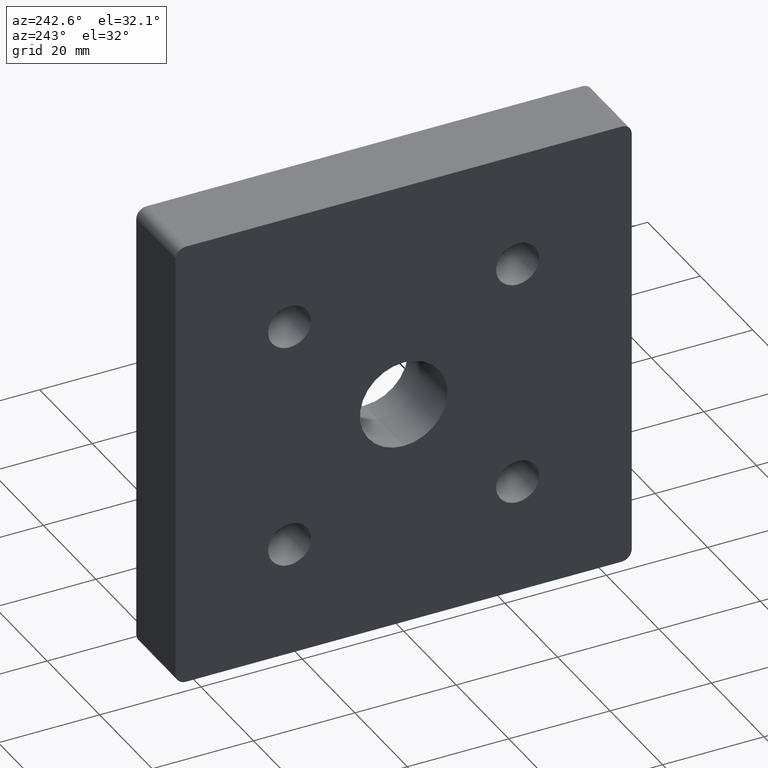
[diagram: clean part render]
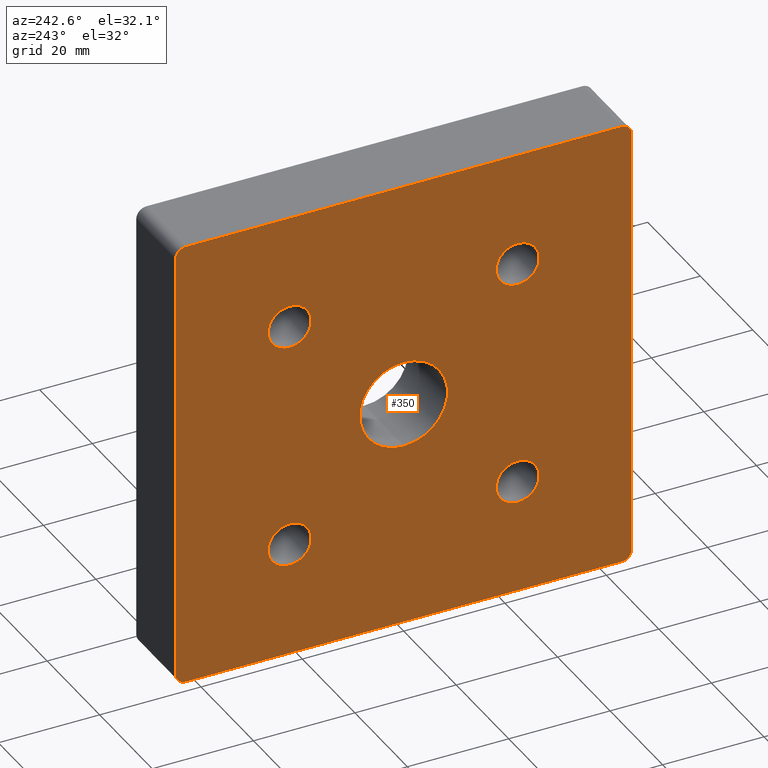
[diagram: same view with one face highlighted and labeled with its STEP entity id]
A machine part, auxiliary view. The second image highlights one B-rep face of the part: STEP entity #350.
In plain terms, the highlighted planar face has unit normal (1, 0, 0).
Its self-contained STEP definition (entity closure, byte-faithful):
#15=FACE_BOUND('',#74,.T.);
#16=FACE_BOUND('',#75,.T.);
#17=FACE_BOUND('',#76,.T.);
#18=FACE_BOUND('',#77,.T.);
#19=FACE_BOUND('',#78,.T.);
#39=PLANE('',#377);
#50=FACE_OUTER_BOUND('',#73,.T.);
#73=EDGE_LOOP('',(#259,#260,#261,#262,#263,#264,#265,#266));
#74=EDGE_LOOP('',(#267));
#75=EDGE_LOOP('',(#268));
#76=EDGE_LOOP('',(#269));
#77=EDGE_LOOP('',(#270));
#78=EDGE_LOOP('',(#271));
#119=LINE('',#550,#135);
#122=LINE('',#556,#138);
#123=LINE('',#560,#139);
#124=LINE('',#564,#140);
#135=VECTOR('',#434,86.);
#138=VECTOR('',#439,86.);
#139=VECTOR('',#442,86.);
#140=VECTOR('',#445,86.);
#150=CIRCLE('',#375,2.);
#151=CIRCLE('',#378,2.);
#152=CIRCLE('',#379,2.);
#153=CIRCLE('',#380,2.);
#154=CIRCLE('',#381,8.647);
#155=CIRCLE('',#382,4.25);
#156=CIRCLE('',#383,4.25);
#157=CIRCLE('',#384,4.25);
#158=CIRCLE('',#385,4.25);
#177=VERTEX_POINT('',#543);
#178=VERTEX_POINT('',#545);
#179=VERTEX_POINT('',#549);
#181=VERTEX_POINT('',#555);
#182=VERTEX_POINT('',#557);
#183=VERTEX_POINT('',#559);
#184=VERTEX_POINT('',#561);
#185=VERTEX_POINT('',#563);
#186=VERTEX_POINT('',#566);
#187=VERTEX_POINT('',#568);
#188=VERTEX_POINT('',#570);
#189=VERTEX_POINT('',#572);
#190=VERTEX_POINT('',#574);
#211=EDGE_CURVE('',#177,#178,#150,.T.);
#213=EDGE_CURVE('',#178,#179,#119,.T.);
#216=EDGE_CURVE('',#181,#177,#122,.T.);
#217=EDGE_CURVE('',#182,#181,#151,.T.);
#218=EDGE_CURVE('',#183,#182,#123,.T.);
#219=EDGE_CURVE('',#184,#183,#152,.T.);
#220=EDGE_CURVE('',#185,#184,#124,.T.);
#221=EDGE_CURVE('',#179,#185,#153,.T.);
#222=EDGE_CURVE('',#186,#186,#154,.T.);
#223=EDGE_CURVE('',#187,#187,#155,.T.);
#224=EDGE_CURVE('',#188,#188,#156,.T.);
#225=EDGE_CURVE('',#189,#189,#157,.T.);
#226=EDGE_CURVE('',#190,#190,#158,.T.);
#259=ORIENTED_EDGE('',*,*,#211,.F.);
#260=ORIENTED_EDGE('',*,*,#216,.F.);
#261=ORIENTED_EDGE('',*,*,#217,.F.);
#262=ORIENTED_EDGE('',*,*,#218,.F.);
#263=ORIENTED_EDGE('',*,*,#219,.F.);
#264=ORIENTED_EDGE('',*,*,#220,.F.);
#265=ORIENTED_EDGE('',*,*,#221,.F.);
#266=ORIENTED_EDGE('',*,*,#213,.F.);
#267=ORIENTED_EDGE('',*,*,#222,.T.);
#268=ORIENTED_EDGE('',*,*,#223,.T.);
#269=ORIENTED_EDGE('',*,*,#224,.T.);
#270=ORIENTED_EDGE('',*,*,#225,.T.);
#271=ORIENTED_EDGE('',*,*,#226,.T.);
#350=ADVANCED_FACE('',(#50,#15,#16,#17,#18,#19),#39,.F.);
#375=AXIS2_PLACEMENT_3D('',#546,#429,#430);
#377=AXIS2_PLACEMENT_3D('',#554,#437,#438);
#378=AXIS2_PLACEMENT_3D('',#558,#440,#441);
#379=AXIS2_PLACEMENT_3D('',#562,#443,#444);
#380=AXIS2_PLACEMENT_3D('',#565,#446,#447);
#381=AXIS2_PLACEMENT_3D('',#567,#448,#449);
#382=AXIS2_PLACEMENT_3D('',#569,#450,#451);
#383=AXIS2_PLACEMENT_3D('',#571,#452,#453);
#384=AXIS2_PLACEMENT_3D('',#573,#454,#455);
#385=AXIS2_PLACEMENT_3D('',#575,#456,#457);
#429=DIRECTION('center_axis',(1.,0.,0.));
#430=DIRECTION('ref_axis',(0.,-0.707106781186548,0.707106781186548));
#434=DIRECTION('',(0.,0.,-1.));
#437=DIRECTION('center_axis',(1.,0.,0.));
#438=DIRECTION('ref_axis',(0.,0.,-1.));
#439=DIRECTION('',(0.,-1.,0.));
#440=DIRECTION('center_axis',(1.,0.,0.));
#441=DIRECTION('ref_axis',(0.,0.707106781186548,0.707106781186548));
#442=DIRECTION('',(0.,0.,1.));
#443=DIRECTION('center_axis',(1.,0.,0.));
#444=DIRECTION('ref_axis',(0.,0.707106781186548,-0.707106781186548));
#445=DIRECTION('',(0.,1.,0.));
#446=DIRECTION('center_axis',(1.,0.,0.));
#447=DIRECTION('ref_axis',(0.,-0.707106781186548,-0.707106781186548));
#448=DIRECTION('center_axis',(1.,0.,0.));
#449=DIRECTION('ref_axis',(0.,0.,-1.));
#450=DIRECTION('center_axis',(1.,0.,0.));
#451=DIRECTION('ref_axis',(0.,0.,-1.));
#452=DIRECTION('center_axis',(1.,0.,0.));
#453=DIRECTION('ref_axis',(0.,0.,-1.));
#454=DIRECTION('center_axis',(1.,0.,0.));
#455=DIRECTION('ref_axis',(0.,0.,-1.));
#456=DIRECTION('center_axis',(1.,0.,0.));
#457=DIRECTION('ref_axis',(0.,0.,-1.));
#543=CARTESIAN_POINT('',(0.,-43.,45.));
#545=CARTESIAN_POINT('',(0.,-45.,43.));
#546=CARTESIAN_POINT('Origin',(0.,-43.,43.));
#549=CARTESIAN_POINT('',(0.,-45.,-43.));
#550=CARTESIAN_POINT('',(0.,-45.,45.));
#554=CARTESIAN_POINT('Origin',(0.,0.,0.));
#555=CARTESIAN_POINT('',(0.,43.,45.));
#556=CARTESIAN_POINT('',(0.,45.,45.));
#557=CARTESIAN_POINT('',(0.,45.,43.));
#558=CARTESIAN_POINT('Origin',(0.,43.,43.));
#559=CARTESIAN_POINT('',(0.,45.,-43.));
#560=CARTESIAN_POINT('',(0.,45.,-45.));
#561=CARTESIAN_POINT('',(0.,43.,-45.));
#562=CARTESIAN_POINT('Origin',(0.,43.,-43.));
#563=CARTESIAN_POINT('',(0.,-43.,-45.));
#564=CARTESIAN_POINT('',(0.,-45.,-45.));
#565=CARTESIAN_POINT('Origin',(0.,-43.,-43.));
#566=CARTESIAN_POINT('',(0.,-1.05895208722272E-15,8.647));
#567=CARTESIAN_POINT('Origin',(0.,0.,0.));
#568=CARTESIAN_POINT('',(0.,-22.5,-18.25));
#569=CARTESIAN_POINT('Origin',(0.,-22.5,-22.5));
#570=CARTESIAN_POINT('',(0.,22.5,26.75));
#571=CARTESIAN_POINT('Origin',(0.,22.5,22.5));
#572=CARTESIAN_POINT('',(0.,22.5,-18.25));
#573=CARTESIAN_POINT('Origin',(0.,22.5,-22.5));
#574=CARTESIAN_POINT('',(0.,-22.5,26.75));
#575=CARTESIAN_POINT('Origin',(0.,-22.5,22.5));